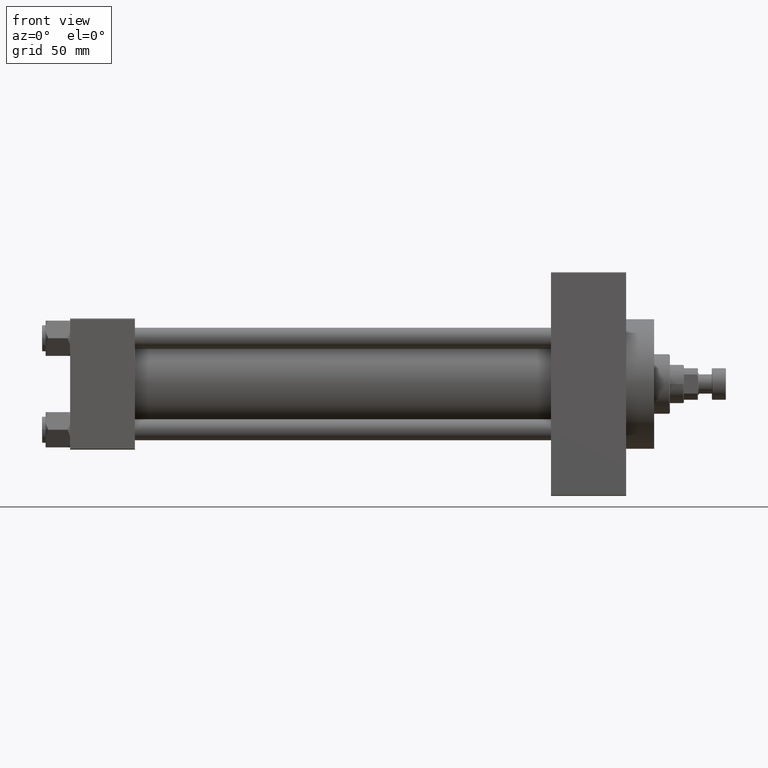
[diagram: clean part render]
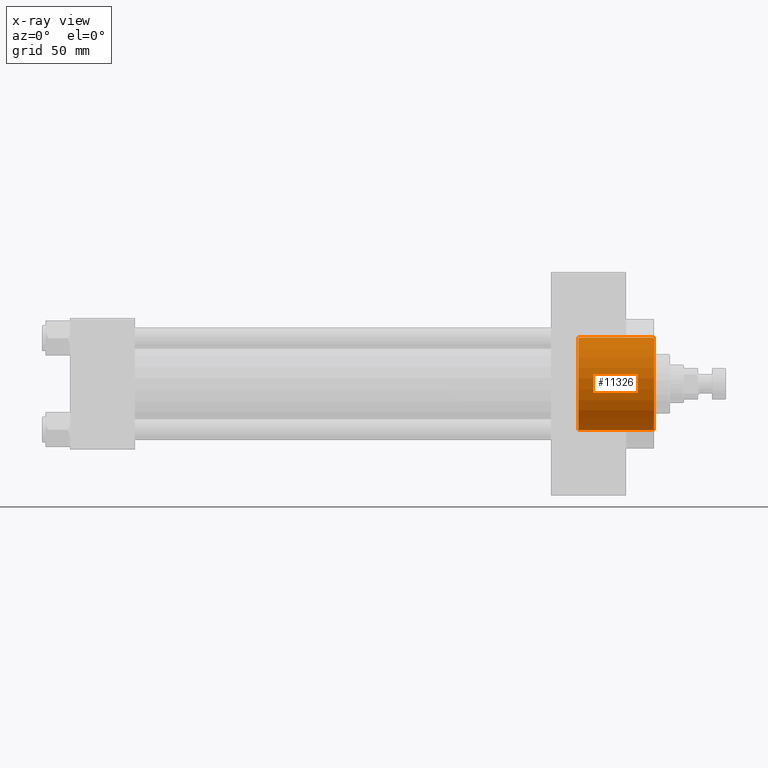
[diagram: x-ray — body ghosted, one internal face saturated and labeled with its STEP entity id]
A machine part, front view, then the same camera in x-ray: the body is ghosted and one INTERNAL B-rep face — a face not visible from any outside direction — is saturated and labeled: STEP entity #11326.
In plain terms, the highlighted cylindrical surface (partial cylindrical patch) has radius 26.5 mm, axis along (1, 0, 0).
Its self-contained STEP definition (entity closure, byte-faithful):
#874 = ORIENTED_EDGE ( 'NONE', *, *, #19759, .T. ) ;
#1062 = VERTEX_POINT ( 'NONE', #19910 ) ;
#2396 = AXIS2_PLACEMENT_3D ( 'NONE', #8675, #23389, #37612 ) ;
#3694 = EDGE_CURVE ( 'NONE', #16102, #35491, #27548, .T. ) ;
#5607 = DIRECTION ( 'NONE',  ( 1.000000000000000000, -0.000000000000000000, -0.000000000000000000 ) ) ;
#7540 = ORIENTED_EDGE ( 'NONE', *, *, #10330, .F. ) ;
#8675 = CARTESIAN_POINT ( 'NONE',  ( 333.9999999999999432, 0.000000000000000000, 0.000000000000000000 ) ) ;
#10330 = EDGE_CURVE ( 'NONE', #1062, #16102, #41501, .T. ) ;
#11326 = ADVANCED_FACE ( 'NONE', ( #22621 ), #41164, .F. ) ;
#11382 = VERTEX_POINT ( 'NONE', #33693 ) ;
#12238 = DIRECTION ( 'NONE',  ( 0.000000000000000000, 0.000000000000000000, -1.000000000000000000 ) ) ;
#13916 = DIRECTION ( 'NONE',  ( 1.000000000000000000, -0.000000000000000000, -0.000000000000000000 ) ) ;
#15468 = VECTOR ( 'NONE', #13916, 1000.000000000000000 ) ;
#16102 = VERTEX_POINT ( 'NONE', #32012 ) ;
#18211 = EDGE_CURVE ( 'NONE', #1062, #11382, #32211, .T. ) ;
#18336 = ORIENTED_EDGE ( 'NONE', *, *, #18211, .T. ) ;
#19470 = EDGE_LOOP ( 'NONE', ( #7540, #18336, #874, #43256 ) ) ;
#19759 = EDGE_CURVE ( 'NONE', #11382, #35491, #30859, .T. ) ;
#19910 = CARTESIAN_POINT ( 'NONE',  ( 290.7399999999999523, 3.245314017740486554E-15, 26.50000000000000355 ) ) ;
#21624 = CARTESIAN_POINT ( 'NONE',  ( 290.7399999999999523, 3.245314017740486554E-15, 26.50000000000000355 ) ) ;
#22621 = FACE_OUTER_BOUND ( 'NONE', #19470, .T. ) ;
#23389 = DIRECTION ( 'NONE',  ( 1.000000000000000000, 0.000000000000000000, 0.000000000000000000 ) ) ;
#23993 = CARTESIAN_POINT ( 'NONE',  ( 333.9999999999999432, 0.000000000000000000, -26.50000000000000355 ) ) ;
#24418 = CARTESIAN_POINT ( 'NONE',  ( 290.7399999999999523, 0.000000000000000000, -26.50000000000000355 ) ) ;
#26126 = AXIS2_PLACEMENT_3D ( 'NONE', #36847, #41401, #12238 ) ;
#27548 = LINE ( 'NONE', #24418, #37967 ) ;
#27920 = DIRECTION ( 'NONE',  ( 1.000000000000000000, 0.000000000000000000, 0.000000000000000000 ) ) ;
#30859 = CIRCLE ( 'NONE', #2396, 26.50000000000000355 ) ;
#32012 = CARTESIAN_POINT ( 'NONE',  ( 290.7399999999999523, 0.000000000000000000, -26.50000000000000355 ) ) ;
#32211 = LINE ( 'NONE', #21624, #15468 ) ;
#33693 = CARTESIAN_POINT ( 'NONE',  ( 333.9999999999999432, 3.245314017740486554E-15, 26.50000000000000355 ) ) ;
#34459 = DIRECTION ( 'NONE',  ( 0.000000000000000000, 0.000000000000000000, -1.000000000000000000 ) ) ;
#35491 = VERTEX_POINT ( 'NONE', #23993 ) ;
#36847 = CARTESIAN_POINT ( 'NONE',  ( 290.7399999999999523, 0.000000000000000000, 0.000000000000000000 ) ) ;
#37612 = DIRECTION ( 'NONE',  ( 0.000000000000000000, 0.000000000000000000, -1.000000000000000000 ) ) ;
#37967 = VECTOR ( 'NONE', #5607, 1000.000000000000000 ) ;
#41164 = CYLINDRICAL_SURFACE ( 'NONE', #26126, 26.50000000000000355 ) ;
#41401 = DIRECTION ( 'NONE',  ( 1.000000000000000000, -0.000000000000000000, -0.000000000000000000 ) ) ;
#41501 = CIRCLE ( 'NONE', #46883, 26.50000000000000355 ) ;
#43256 = ORIENTED_EDGE ( 'NONE', *, *, #3694, .F. ) ;
#45527 = CARTESIAN_POINT ( 'NONE',  ( 290.7399999999999523, 0.000000000000000000, 0.000000000000000000 ) ) ;
#46883 = AXIS2_PLACEMENT_3D ( 'NONE', #45527, #27920, #34459 ) ;